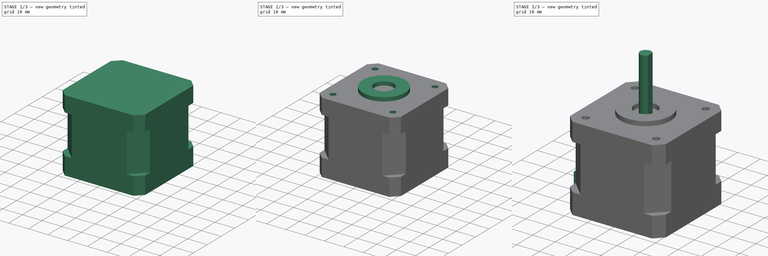
[diagram: build sequence overview — one tinted view per stage of 3, left to right]
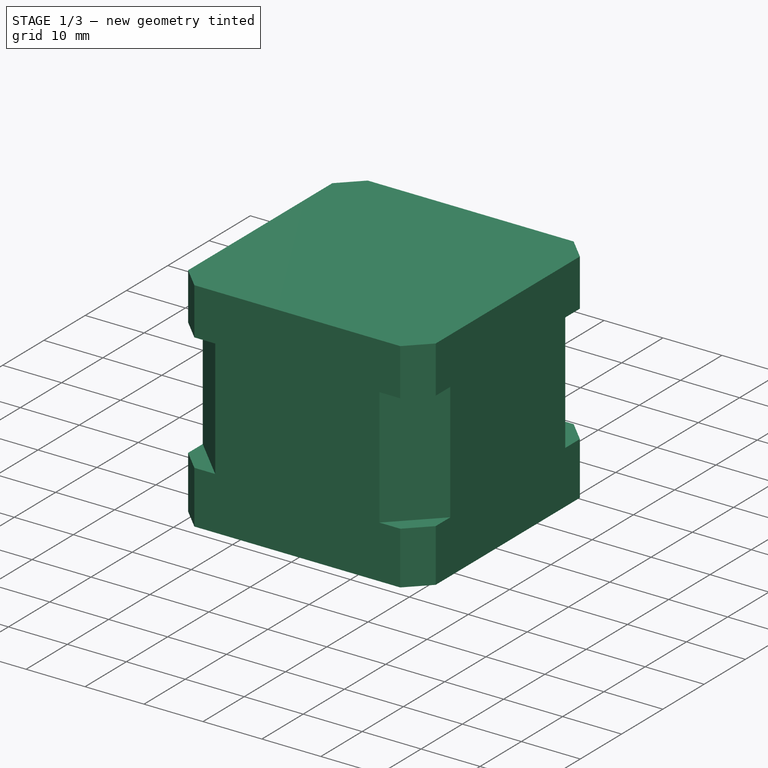
[diagram: stage 1 of 3 — iso view after this stage's code; geometry added in this stage tinted green]
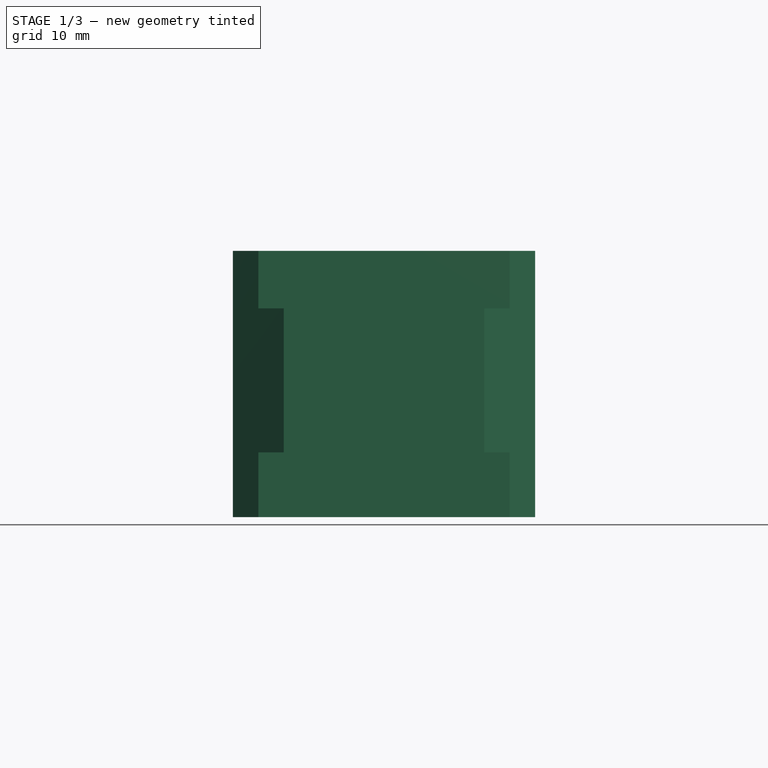
[diagram: stage 1 of 3 — front view after this stage's code; geometry added in this stage tinted green]
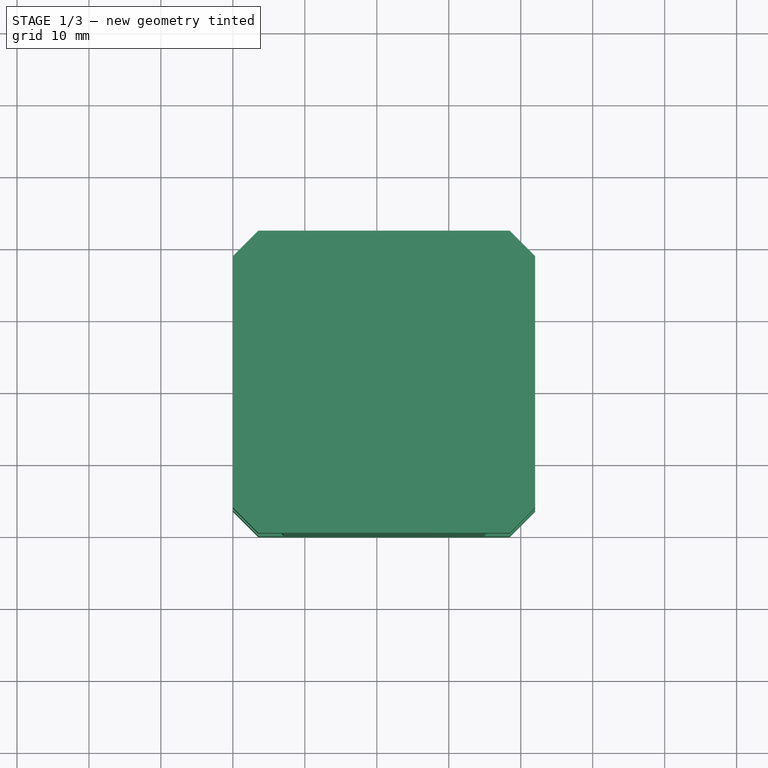
[diagram: stage 1 of 3 — top view after this stage's code; geometry added in this stage tinted green]
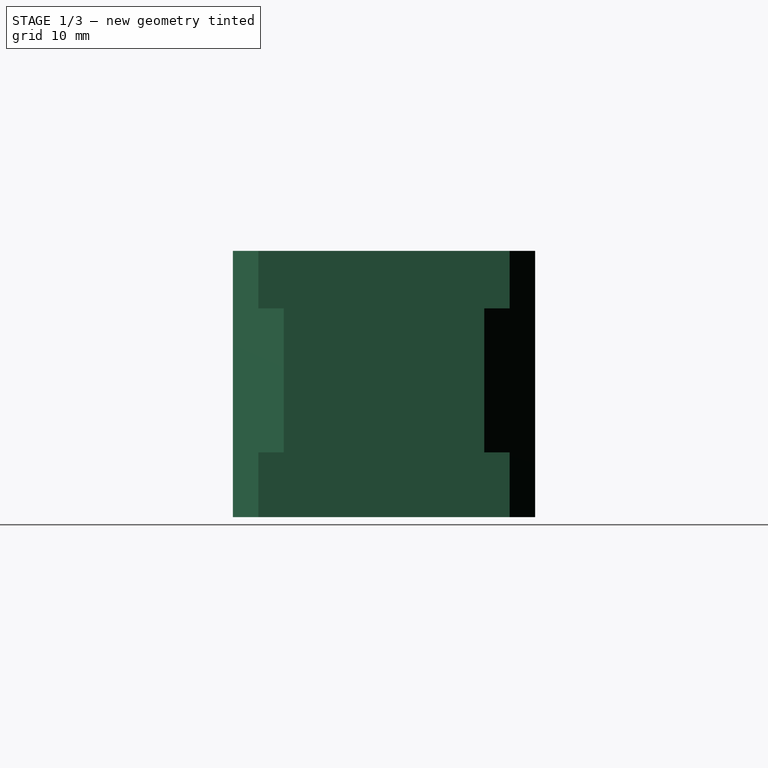
[diagram: stage 1 of 3 — right view after this stage's code; geometry added in this stage tinted green]
FCSTD DOCUMENT  (FreeCAD 0.21R33771 (Git))
Label: stepper_motor_nema_17
License: All rights reserved
LicenseURL: http://en.wikipedia.org/wiki/All_rights_reserved
objects: Sketcher::SketchObject×6, PartDesign::Pad×4, PartDesign::Plane×2, PartDesign::Pocket×2, PartDesign::Body×1
note: 21 computed .brp shape members not serialized (recipe doc carries the construction recipe); baked Part::Feature solids carry a one-line shape summary decoded from their .brp

FEATURE [Sketcher::SketchObject] Sketch  label="sketch_base"
  FullyConstrained = true
  MapMode = 5
  Support = -> [XY_Plane]
  expr: Constraints[41] = .Constraints.L1
  sketch-geometry (16):
    g0: LineSegment StartX=0 StartY=0 StartZ=0 EndX=3.53553 EndY=0 EndZ=0
    g1: LineSegment StartX=0 StartY=0 StartZ=0 EndX=0 EndY=3.53553 EndZ=0
    g2: LineSegment StartX=0 StartY=3.53553 StartZ=0 EndX=3.53553 EndY=0 EndZ=0
    g3: LineSegment StartX=3.53553 StartY=0 StartZ=0 EndX=38.4645 EndY=0 EndZ=0
    g4: LineSegment StartX=38.4645 StartY=0 StartZ=0 EndX=42 EndY=0 EndZ=0
    g5: LineSegment StartX=42 StartY=0 StartZ=0 EndX=42 EndY=3.53553 EndZ=0
    g6: LineSegment StartX=38.4645 StartY=0 StartZ=0 EndX=42 EndY=3.53553 EndZ=0
    g7: LineSegment StartX=42 StartY=3.53553 StartZ=0 EndX=42 EndY=38.4645 EndZ=0
    g8: LineSegment StartX=42 StartY=38.4645 StartZ=0 EndX=42 EndY=42 EndZ=0
    g9: LineSegment StartX=42 StartY=38.4645 StartZ=0 EndX=38.4645 EndY=42 EndZ=0
    g10: LineSegment StartX=42 StartY=42 StartZ=0 EndX=38.4645 EndY=42 EndZ=0
    g11: LineSegment StartX=38.4645 StartY=42 StartZ=0 EndX=3.53553 EndY=42 EndZ=0
    g12: LineSegment StartX=3.53553 StartY=42 StartZ=0 EndX=0 EndY=38.4645 EndZ=0
    g13: LineSegment StartX=3.53553 StartY=42 StartZ=0 EndX=0 EndY=42 EndZ=0
    g14: LineSegment StartX=0 StartY=42 StartZ=0 EndX=0 EndY=38.4645 EndZ=0
    g15: LineSegment StartX=0 StartY=38.4645 StartZ=0 EndX=0 EndY=3.53553 EndZ=0
  constraints (43):
    c: Coincident(g0,g-1)
    c: PointOnObject(g0,g-1)
    c: Coincident(g1,g0)
    c: PointOnObject(g1,g-2)
    c: Coincident(g2,g1)
    c: Coincident(g2,g0)
    c: Coincident(g3,g0)
    c: PointOnObject(g3,g-1)
    c: Coincident(g4,g3)
    c: PointOnObject(g4,g-1)
    c: Coincident(g5,g4)
    c: Vertical(g5)
    c: Coincident(g6,g3)
    c: Coincident(g6,g5)
    c: Coincident(g7,g5)
    c: Vertical(g7)
    c: Coincident(g8,g7)
    c: Vertical(g8)
    c: Coincident(g9,g7)
    c: Coincident(g10,g8)
    c: Coincident(g10,g9)
    c: Coincident(g11,g9)
    c: Horizontal(g11)
    c: Coincident(g12,g11)
    c: PointOnObject(g12,g-2)
    c: Coincident(g13,g11)
    c: PointOnObject(g13,g-2)
    c: Horizontal(g13)
    c: Coincident(g14,g13)
    c: Coincident(g14,g12)
    c: Coincident(g15,g12)
    c: Coincident(g15,g1)
    c: Horizontal(g10)
    c: Equal(g14,g13)
    c: Equal(g13,g10)
    c: Equal(g10,g8)
    c: Equal(g8,g5)
    c: Equal(g5,g4)
    c: Equal(g4,g0)
    c: Equal(g0,g1)
    c: DistanceY(g0,g13) = 42  'L1'
    c: DistanceX(g13,g8) = 42
    c: Distance(g2) = 5
FEATURE [PartDesign::Pad] Pad  label="pad_base"
  Direction = (0,0,1)
  Length = 37
  Length2 = 10
  Profile = -> Sketch
  ReferenceAxis = -> Sketch [N_Axis]
  Refine = true
  Type = 0
FEATURE [PartDesign::Plane] DatumPlane  label="plan_inter"
  AttachmentOffset = pos=(0,0,9) rot=(0,0,1;0rad)
  Length = 80.4
  MapMode = 5
  Placement = pos=(0,0,9) rot=(0,0,1;0rad)
  ResizeMode = 0
  Support = -> [XY_Plane]
  Width = 80.4
FEATURE [Sketcher::SketchObject] Sketch001  label="sketch_inter"
  FullyConstrained = true
  MapMode = 5
  Placement = pos=(0,0,9) rot=(0,0,1;0rad)
  Support = -> [DatumPlane]
  expr: Constraints[28] = .Constraints.L1
  sketch-geometry (20):
    g0: LineSegment StartX=42 StartY=0 StartZ=0 EndX=42 EndY=7.07107 EndZ=0
    g1: LineSegment StartX=42 StartY=42 StartZ=0 EndX=34.9289 EndY=42 EndZ=0
    g2: LineSegment StartX=34.9289 StartY=42 StartZ=0 EndX=42 EndY=34.9289 EndZ=0
    g3: LineSegment StartX=34.9289 StartY=42 StartZ=0 EndX=7.07107 EndY=42 EndZ=0
    g4: LineSegment StartX=7.07107 StartY=42 StartZ=0 EndX=0 EndY=42 EndZ=0
    g5: LineSegment StartX=0 StartY=42 StartZ=0 EndX=0 EndY=34.9289 EndZ=0
    g6: LineSegment StartX=0 StartY=34.9289 StartZ=0 EndX=7.07107 EndY=42 EndZ=0
    g7: LineSegment StartX=0 StartY=34.9289 StartZ=0 EndX=0 EndY=7.07107 EndZ=0
    g8: LineSegment StartX=0 StartY=7.07107 StartZ=0 EndX=7.07107 EndY=0 EndZ=0
    g9: LineSegment StartX=0 StartY=7.07107 StartZ=0 EndX=0 EndY=0 EndZ=0
    g10: LineSegment StartX=42 StartY=34.9289 StartZ=0 EndX=42 EndY=42 EndZ=0
    g11: LineSegment StartX=42 StartY=34.9289 StartZ=0 EndX=42 EndY=7.07107 EndZ=0
    g12: LineSegment StartX=0 StartY=0 StartZ=0 EndX=7.07107 EndY=0 EndZ=0
    g13: LineSegment StartX=42 StartY=0 StartZ=0 EndX=34.9289 EndY=0 EndZ=0
    g14: LineSegment StartX=34.9289 StartY=0 StartZ=0 EndX=7.07107 EndY=0 EndZ=0
    g15: LineSegment StartX=34.9289 StartY=0 StartZ=0 EndX=42 EndY=7.07107 EndZ=0
    g16: LineSegment StartX=-25 StartY=67 StartZ=0 EndX=67 EndY=67 EndZ=0
    g17: LineSegment StartX=67 StartY=67 StartZ=0 EndX=67 EndY=-25 EndZ=0
    g18: LineSegment StartX=67 StartY=-25 StartZ=0 EndX=-25 EndY=-25 EndZ=0
    g19: LineSegment StartX=-25 StartY=-25 StartZ=0 EndX=-25 EndY=67 EndZ=0
  constraints (56):
    c: PointOnObject(g0,g-1)
    c: Vertical(g0)
    c: Horizontal(g1)
    c: Coincident(g2,g1)
    c: Coincident(g3,g1)
    c: Horizontal(g3)
    c: Coincident(g4,g3)
    c: PointOnObject(g4,g-2)
    c: Horizontal(g4)
    c: Coincident(g5,g4)
    c: PointOnObject(g5,g-2)
    c: Coincident(g6,g5)
    c: Coincident(g6,g3)
    c: Coincident(g7,g5)
    c: PointOnObject(g7,g-2)
    c: Coincident(g8,g7)
    c: Coincident(g9,g7)
    c: Coincident(g10,g2)
    c: Coincident(g10,g1)
    c: Vertical(g10)
    c: Coincident(g11,g2)
    c: Coincident(g11,g0)
    c: Vertical(g11)
    c: Coincident(g12,g9)
    c: Coincident(g12,g8)
    c: Horizontal(g12)
    c: Vertical(g9)
    c: DistanceY(g9,g4) = 42  'L1'
    c: DistanceX(g4,g1) = 42
    c: Coincident(g13,g0)
    c: PointOnObject(g13,g-1)
    c: Coincident(g14,g13)
    c: Coincident(g14,g8)
    c: Horizontal(g14)
    c: Coincident(g15,g13)
    c: Coincident(g15,g11)
    c: Equal(g13,g0)
    c: Equal(g0,g10)
    c: Equal(g10,g1)
    c: Equal(g1,g4)
    c: Equal(g4,g5)
    c: Equal(g5,g9)
    c: Equal(g9,g12)
    c: Distance(g8) = 10
    c: Coincident(g16,g17)
    c: Coincident(g17,g18)
    c: Coincident(g18,g19)
    c: Coincident(g19,g16)
    c: Horizontal(g16)
    c: Horizontal(g18)
    c: Vertical(g17)
    c: Vertical(g19)
    c: DistanceX(g18,g18) = 92
    c: DistanceY(g19,g19) = 92
    c: DistanceY(g18,g9) = 25
    c: DistanceX(g18,g9) = 25
FEATURE [PartDesign::Pocket] Pocket  label="pocket_inter"
  BaseFeature = -> Pad
  Direction = (0,0,-1)
  Length = 20
  Length2 = 5
  Profile = -> Sketch001
  ReferenceAxis = -> Sketch001 [N_Axis]
  Refine = true
  Reversed = true
  Type = 0
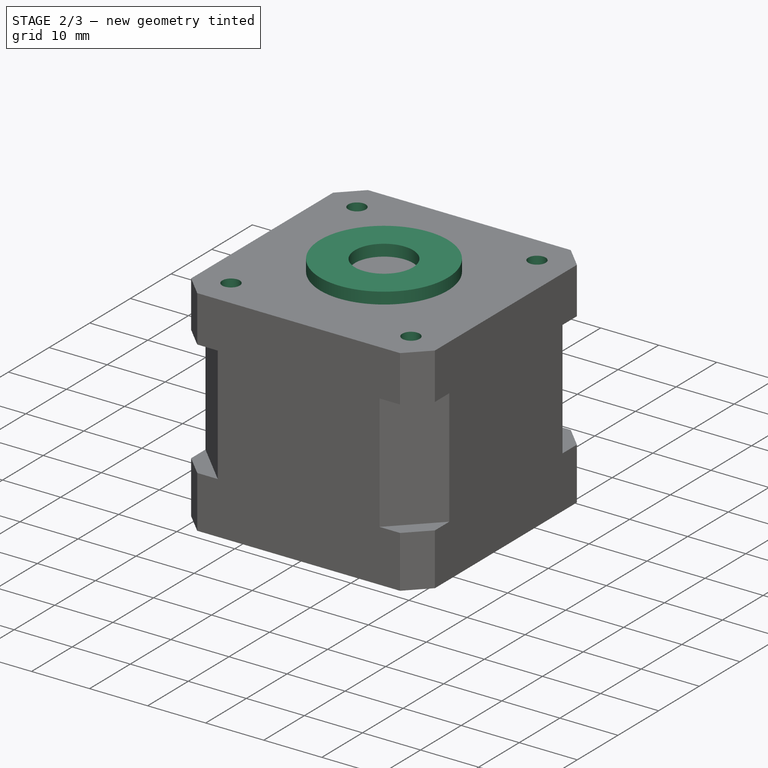
[diagram: stage 2 of 3 — iso view after this stage's code; geometry added in this stage tinted green]
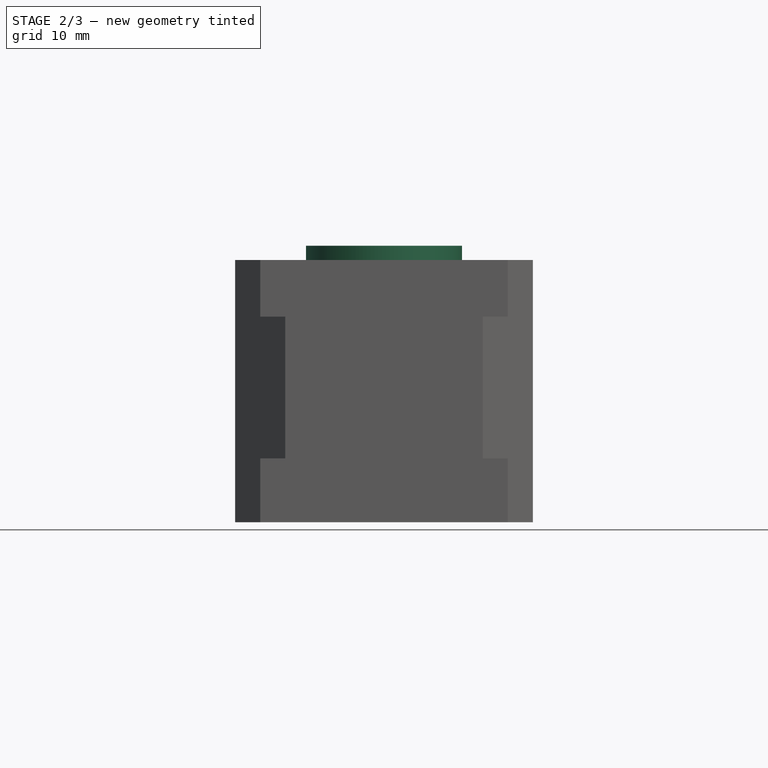
[diagram: stage 2 of 3 — front view after this stage's code; geometry added in this stage tinted green]
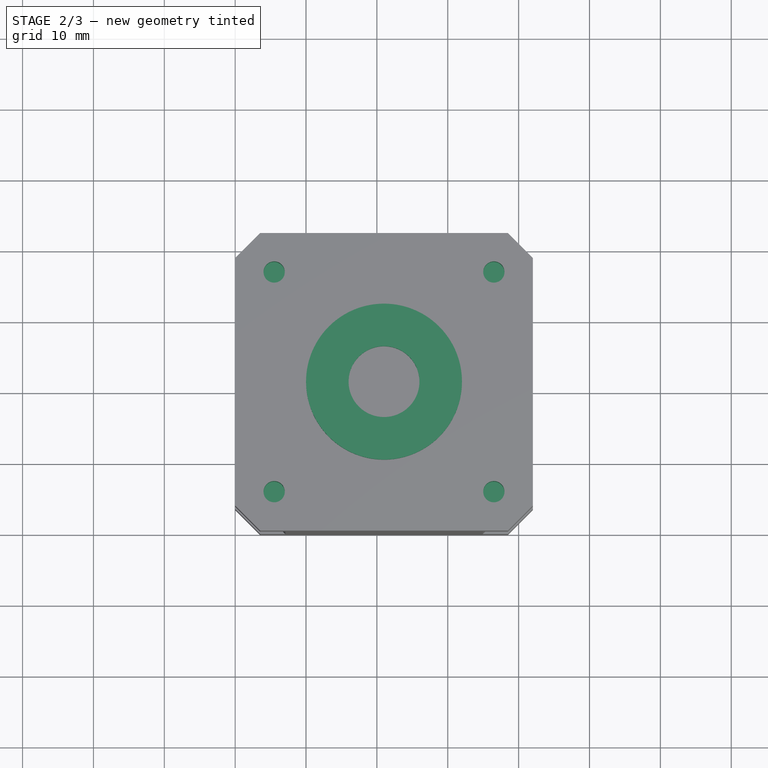
[diagram: stage 2 of 3 — top view after this stage's code; geometry added in this stage tinted green]
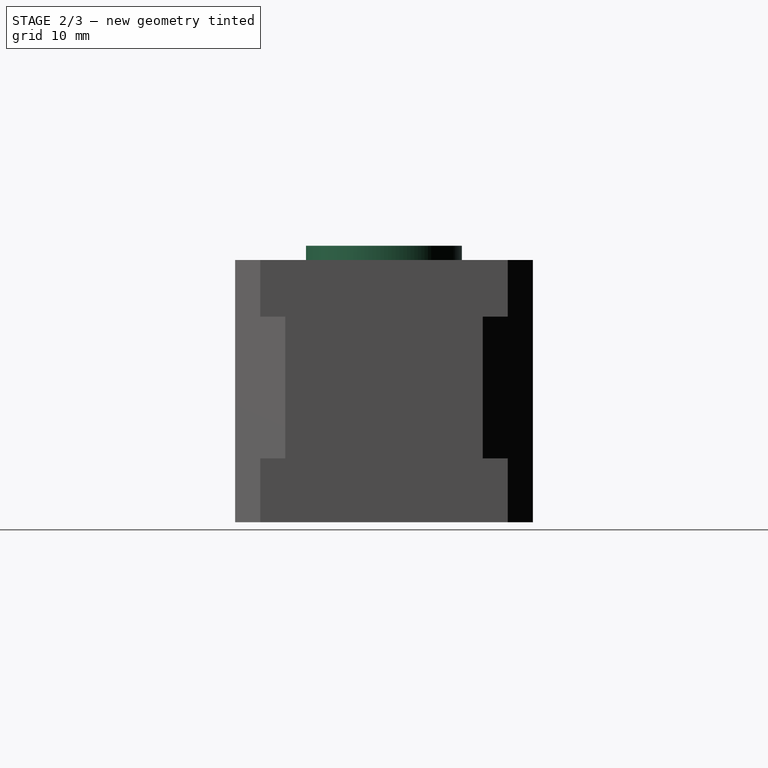
[diagram: stage 2 of 3 — right view after this stage's code; geometry added in this stage tinted green]
FEATURE [PartDesign::Plane] DatumPlane001  label="plan_top"
  AttachmentOffset = pos=(0,0,37) rot=(0,0,1;0rad)
  Length = 80.4
  MapMode = 5
  Placement = pos=(0,0,37) rot=(0,0,1;0rad)
  ResizeMode = 0
  Support = -> [XY_Plane]
  Width = 80.4
  expr: .AttachmentOffset.Base.z = <<pad_base>>.Length
FEATURE [Sketcher::SketchObject] Sketch002  label="sketch_ring"
  FullyConstrained = true
  MapMode = 5
  Placement = pos=(0,0,37) rot=(0,0,1;0rad)
  Support = -> [DatumPlane001]
  sketch-geometry (3):
    g0: GeomPoint X=21 Y=21 Z=0
    g1: Circle CenterX=21 CenterY=21 CenterZ=0 NormalX=0 NormalY=0 NormalZ=1 AngleXU=0 Radius=5
    g2: Circle CenterX=21 CenterY=21 CenterZ=0 NormalX=0 NormalY=0 NormalZ=1 AngleXU=0 Radius=11
  constraints (6):
    c: DistanceX(g-1,g0) = 21
    c: DistanceY(g-1,g0) = 21
    c: Coincident(g1,g0)
    c: Diameter(g1) = 10
    c: Coincident(g2,g1)
    c: Diameter(g2) = 22
FEATURE [PartDesign::Pad] Pad001  label="pad_ring"
  BaseFeature = -> Pocket
  Direction = (0,0,1)
  Length = 2
  Length2 = 10
  Profile = -> Sketch002
  ReferenceAxis = -> Sketch002 [N_Axis]
  Refine = true
  Type = 0
FEATURE [Sketcher::SketchObject] Sketch003  label="sketch_mounting_holes"
  FullyConstrained = true
  MapMode = 5
  Placement = pos=(0,0,37) rot=(0,0,1;0rad)
  Support = -> [DatumPlane001]
  sketch-geometry (9):
    g0: LineSegment StartX=36.5 StartY=5.5 StartZ=0 EndX=5.5 EndY=5.5 EndZ=0
    g1: LineSegment StartX=5.5 StartY=5.5 StartZ=0 EndX=5.5 EndY=36.5 EndZ=0
    g2: LineSegment StartX=5.5 StartY=36.5 StartZ=0 EndX=36.5 EndY=36.5 EndZ=0
    g3: LineSegment StartX=36.5 StartY=36.5 StartZ=0 EndX=36.5 EndY=5.5 EndZ=0
    g4: GeomPoint X=21 Y=21 Z=0
    g5: Circle CenterX=5.5 CenterY=36.5 CenterZ=0 NormalX=0 NormalY=0 NormalZ=1 AngleXU=0 Radius=1.5
    g6: Circle CenterX=36.5 CenterY=36.5 CenterZ=0 NormalX=0 NormalY=0 NormalZ=1 AngleXU=0 Radius=1.5
    g7: Circle CenterX=36.5 CenterY=5.5 CenterZ=0 NormalX=0 NormalY=0 NormalZ=1 AngleXU=0 Radius=1.5
    g8: Circle CenterX=5.5 CenterY=5.5 CenterZ=0 NormalX=0 NormalY=0 NormalZ=1 AngleXU=0 Radius=1.5
  constraints (21):
    c: Coincident(g0,g1)
    c: Coincident(g1,g2)
    c: Coincident(g2,g3)
    c: Coincident(g3,g0)
    c: Horizontal(g0)
    c: Horizontal(g2)
    c: Vertical(g1)
    c: Vertical(g3)
    c: Symmetric(g2,g0,g4)
    c: DistanceX(g-1,g4) = 21
    c: DistanceY(g-1,g4) = 21
    c: Equal(g2,g3)
    c: DistanceX(g2,g2) = 31
    c: Coincident(g5,g1)
    c: Coincident(g6,g2)
    c: Coincident(g7,g0)
    c: Coincident(g8,g0)
    c: Equal(g5,g6)
    c: Equal(g6,g7)
    c: Equal(g7,g8)
    c: Diameter(g8) = 3
FEATURE [PartDesign::Pocket] Pocket001  label="pocket_mounting_holes"
  BaseFeature = -> Pad001
  Direction = (0,0,-1)
  Length = 5
  Length2 = 5
  Profile = -> Sketch003
  ReferenceAxis = -> Sketch003 [N_Axis]
  Refine = true
  Type = 0
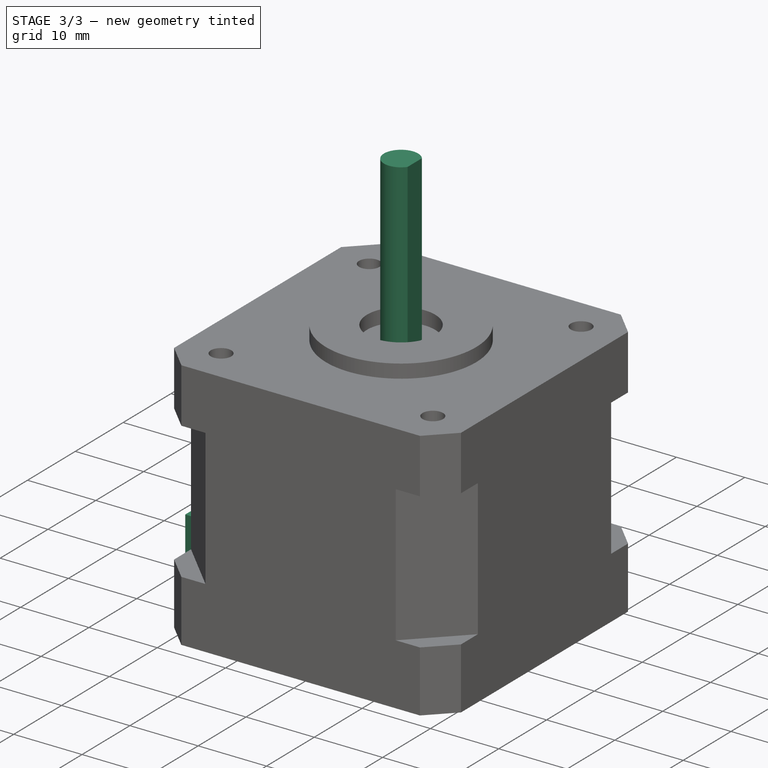
[diagram: stage 3 of 3 — iso view after this stage's code; geometry added in this stage tinted green]
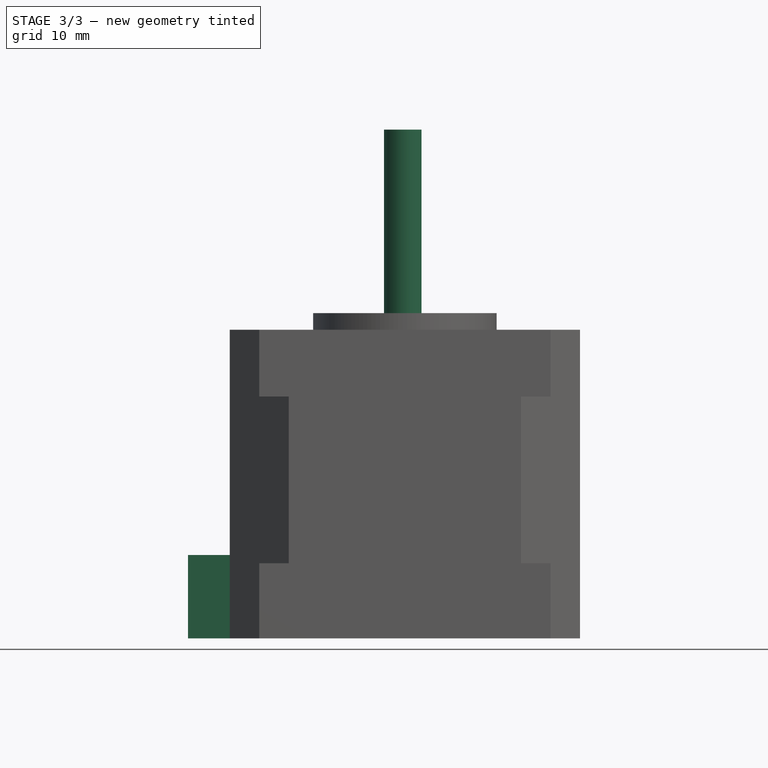
[diagram: stage 3 of 3 — front view after this stage's code; geometry added in this stage tinted green]
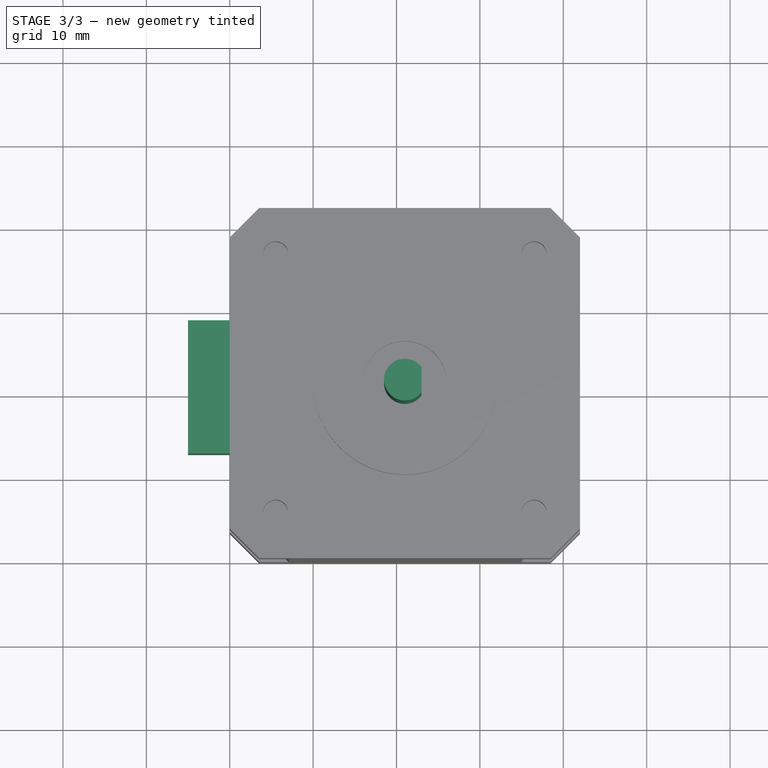
[diagram: stage 3 of 3 — top view after this stage's code; geometry added in this stage tinted green]
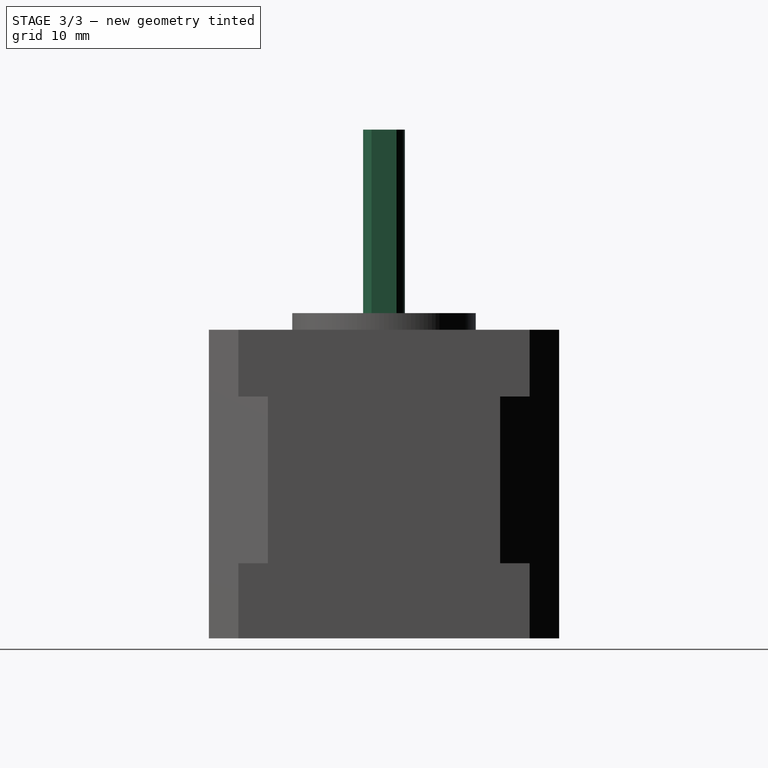
[diagram: stage 3 of 3 — right view after this stage's code; geometry added in this stage tinted green]
FEATURE [Sketcher::SketchObject] Sketch004  label="sketch_rod"
  FullyConstrained = true
  MapMode = 5
  Placement = pos=(0,0,37) rot=(0,0,1;0rad)
  Support = -> [DatumPlane001]
  sketch-geometry (3):
    g0: GeomPoint X=21 Y=21 Z=0
    g1: ArcOfCircle CenterX=21 CenterY=21 CenterZ=0 NormalX=0 NormalY=0 NormalZ=1 AngleXU=0 Radius=2.5 StartAngle=0.643501 EndAngle=5.63968
    g2: LineSegment StartX=23 StartY=19.5 StartZ=0 EndX=23 EndY=22.5 EndZ=0
  constraints (8):
    c: DistanceX(g-1,g0) = 21
    c: DistanceY(g-1,g0) = 21
    c: Coincident(g1,g0)
    c: Coincident(g2,g1)
    c: Coincident(g2,g1)
    c: Vertical(g2)
    c: Diameter(g1) = 5
    c: DistanceY(g2,g2) = 3
FEATURE [PartDesign::Pad] Pad002  label="pad_rod"
  BaseFeature = -> Pocket001
  Direction = (0,0,1)
  Length = 24
  Length2 = 10
  Profile = -> Sketch004
  ReferenceAxis = -> Sketch004 [N_Axis]
  Refine = true
  Type = 0
FEATURE [Sketcher::SketchObject] Sketch005  label="sketch_connector"
  FullyConstrained = true
  MapMode = 5
  Support = -> [XY_Plane]
  sketch-geometry (6):
    g0: LineSegment StartX=0 StartY=29 StartZ=0 EndX=-5 EndY=29 EndZ=0
    g1: LineSegment StartX=-5 StartY=29 StartZ=0 EndX=-5 EndY=13 EndZ=0
    g2: LineSegment StartX=-5 StartY=13 StartZ=0 EndX=0 EndY=13 EndZ=0
    g3: LineSegment StartX=0 StartY=13 StartZ=0 EndX=0 EndY=29 EndZ=0
    g4: GeomPoint X=0 Y=21 Z=0
    g5: GeomPoint X=0 Y=42 Z=0
  constraints (14):
    c: Coincident(g0,g1)
    c: Coincident(g1,g2)
    c: Coincident(g2,g3)
    c: Coincident(g3,g0)
    c: Horizontal(g0)
    c: Horizontal(g2)
    c: Vertical(g1)
    c: Vertical(g3)
    c: PointOnObject(g0,g-2)
    c: DistanceY(g1,g1) = 16
    c: DistanceX(g0,g0) = 5
    c: Symmetric(g2,g0,g4)
    c: DistanceY(g-1,g5) = 42
    c: Symmetric(g5,g-1,g4)
FEATURE [PartDesign::Pad] Pad003  label="pad_connector"
  BaseFeature = -> Pad002
  Direction = (0,0,1)
  Length = 10
  Length2 = 10
  Profile = -> Sketch005
  ReferenceAxis = -> Sketch005 [N_Axis]
  Refine = true
  Type = 0
FEATURE [PartDesign::Body] Body
  Group = -> [Sketch,Pad,DatumPlane,Sketch001,Pocket,DatumPlane001,Sketch002,Pad001,Sketch003,Pocket001,Sketch004,Pad002,Sketch005,Pad003]
  Origin = -> Origin
  Tip = -> Pad003
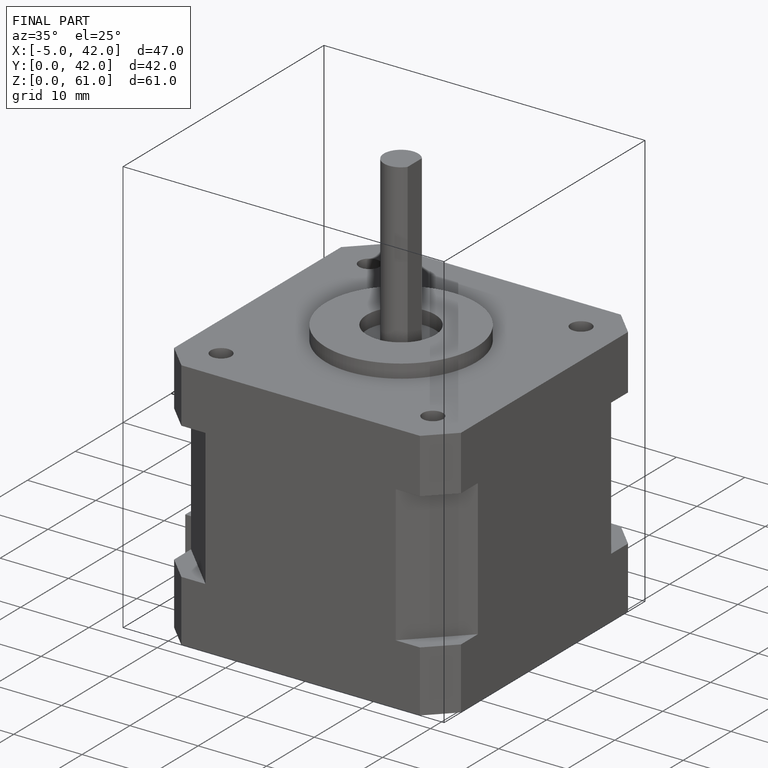
[diagram: finished part — iso view with bounding-box wireframe]
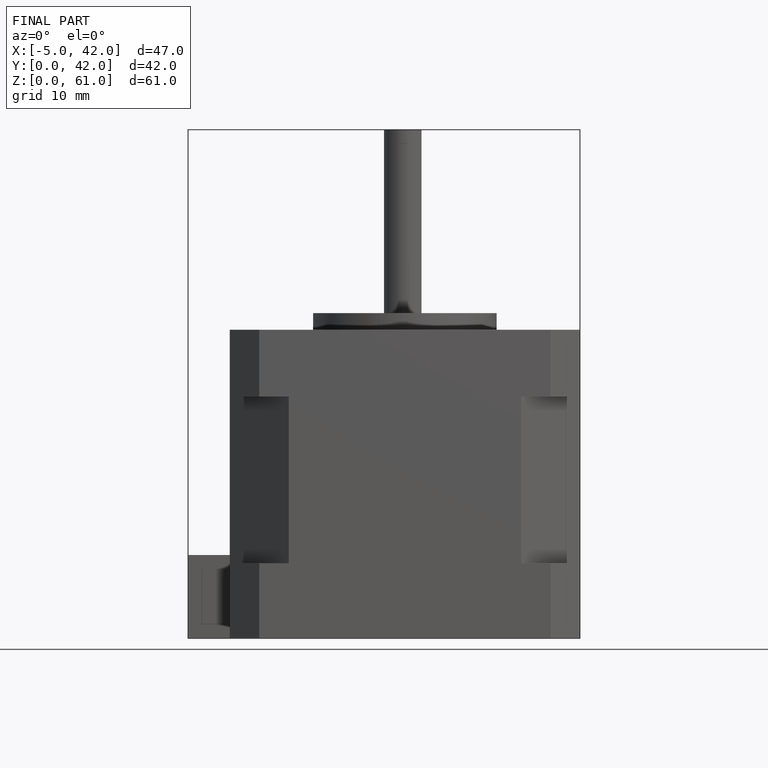
[diagram: finished part — front view with bounding-box wireframe]
